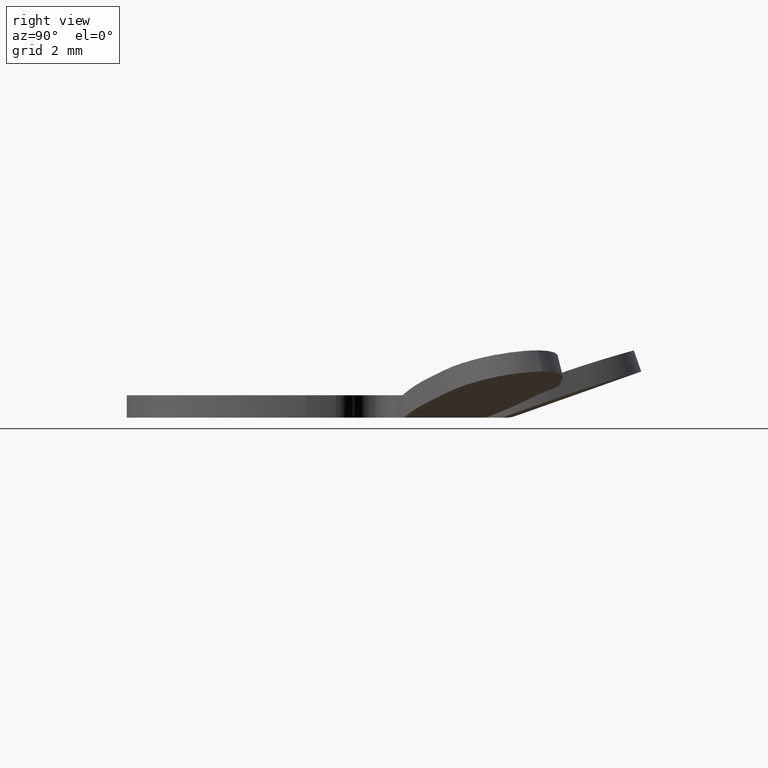
[diagram: clean part render]
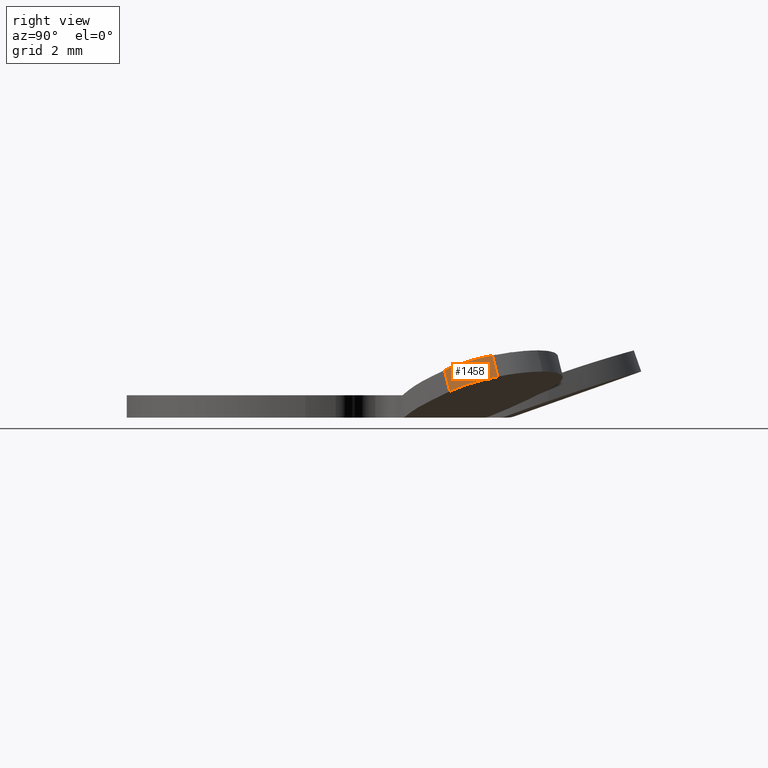
[diagram: same view with one face highlighted and labeled with its STEP entity id]
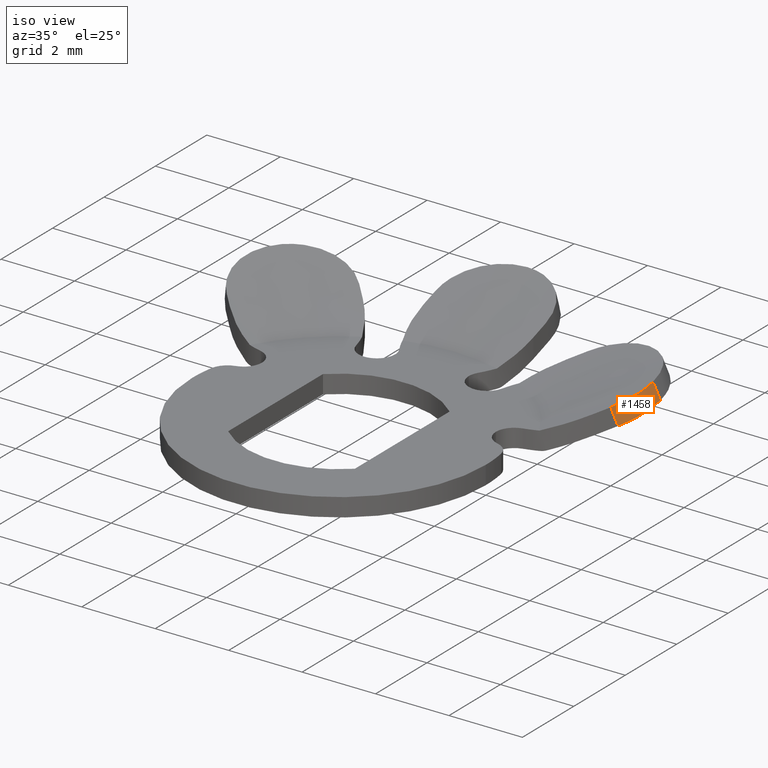
[diagram: same view with one face highlighted and labeled with its STEP entity id]
A machine part, right view. The second image highlights one B-rep face of the part: STEP entity #1458.
A second angle (iso view) of the same face is appended — the face is thin or edge-on in the first view.
In plain terms, the highlighted cylindrical surface (partial cylindrical patch) has radius 1.5 mm, axis along (-0.2357, -0.2357, 0.9428).
Its self-contained STEP definition (entity closure, byte-faithful):
#43 = CARTESIAN_POINT ( 'NONE',  ( 5.483590628253358200, 3.362270284693671400, 0.6527851435058935600 ) ) ;
#53 = VERTEX_POINT ( 'NONE', #1298 ) ;
#79 = EDGE_LOOP ( 'NONE', ( #1463, #966, #1723, #1173 ) ) ;
#152 = DIRECTION ( 'NONE',  ( -0.2357022603955168100, -0.2357022603955144000, 0.9428090415820633600 ) ) ;
#203 = CARTESIAN_POINT ( 'NONE',  ( 5.296689818293988800, 3.175369474734303300, 1.092393531215509100 ) ) ;
#286 = CARTESIAN_POINT ( 'NONE',  ( 5.749218782144581900, 4.294005031925978600, 0.9157053712087435100 ) ) ;
#330 = DIRECTION ( 'NONE',  ( 0.9701425001453314300, 0.0000000000000000000, 0.2425356250363348800 ) ) ;
#483 = CARTESIAN_POINT ( 'NONE',  ( 5.461690359960687000, 3.413182843307039700, 1.186017967799651400 ) ) ;
#610 = VECTOR ( 'NONE', #1668, 1000.000000000000100 ) ;
#611 = CARTESIAN_POINT ( 'NONE',  ( 5.575404564336802900, 3.685099742276374300, 1.271786683140024200 ) ) ;
#651 = AXIS2_PLACEMENT_3D ( 'NONE', #1119, #1406, #330 ) ;
#656 = LINE ( 'NONE', #871, #610 ) ;
#713 = CARTESIAN_POINT ( 'NONE',  ( 5.718825601358008500, 3.899683925508650200, 0.8258045417529468200 ) ) ;
#738 = CYLINDRICAL_SURFACE ( 'NONE', #651, 1.500000000000000200 ) ;
#748 = CARTESIAN_POINT ( 'NONE',  ( 5.630873106498723900, 3.975719565322630700, 1.345911199545375200 ) ) ;
#785 = VECTOR ( 'NONE', #152, 1000.000000000000100 ) ;
#796 = B_SPLINE_CURVE_WITH_KNOTS ( 'NONE', 3,
 ( #1143, #203, #1274, #483, #1411, #611, #1547, #748, #1674, #878 ),
 .UNSPECIFIED., .F., .F.,
 ( 4, 2, 2, 2, 4 ),
 ( 0.0000000000000000000, 0.0003042131761954048500, 0.0006084263523908096900, 0.0009126395285862145400, 0.001216852704781619400 ),
 .UNSPECIFIED. ) ;
#842 = CARTESIAN_POINT ( 'NONE',  ( 5.590505700130660400, 3.529762800402348700, 0.7158734156958351800 ) ) ;
#871 = CARTESIAN_POINT ( 'NONE',  ( 1.455213750217997600, -1.533293416683381800E-016, 18.09172549891237100 ) ) ;
#878 = CARTESIAN_POINT ( 'NONE',  ( 5.631228954200704400, 4.176015203982663200, 1.387664682981616400 ) ) ;
#900 = CARTESIAN_POINT ( 'NONE',  ( 5.227878011468318300, 3.106557667908633700, 1.059050702603928600 ) ) ;
#966 = ORIENTED_EDGE ( 'NONE', *, *, #1466, .T. ) ;
#967 = CARTESIAN_POINT ( 'NONE',  ( 5.754140527042244100, 4.194362117486194900, 0.8960183916155182200 ) ) ;
#976 = VERTEX_POINT ( 'NONE', #1081 ) ;
#979 = CARTESIAN_POINT ( 'NONE',  ( 5.346124389779530100, 3.224804046219843300, 0.5860651893590921300 ) ) ;
#1081 = CARTESIAN_POINT ( 'NONE',  ( 5.631228954200704400, 4.176015203982663200, 1.387664682981616400 ) ) ;
#1115 = CARTESIAN_POINT ( 'NONE',  ( 5.749218782144581900, 4.294005031925978600, 0.9157053712087435100 ) ) ;
#1119 = CARTESIAN_POINT ( 'NONE',  ( 1.533293416683366200E-016, -1.533293416683381800E-016, 17.72792206135786900 ) ) ;
#1134 = LINE ( 'NONE', #1617, #785 ) ;
#1142 = VERTEX_POINT ( 'NONE', #286 ) ;
#1143 = CARTESIAN_POINT ( 'NONE',  ( 5.227878011468318300, 3.106557667908633700, 1.059050702603928600 ) ) ;
#1173 = ORIENTED_EDGE ( 'NONE', *, *, #1328, .F. ) ;
#1274 = CARTESIAN_POINT ( 'NONE',  ( 5.357089378788100700, 3.250574265936249800, 1.124379142441682900 ) ) ;
#1298 = CARTESIAN_POINT ( 'NONE',  ( 5.346124389779530100, 3.224804046219843300, 0.5860651893590921300 ) ) ;
#1321 = FACE_OUTER_BOUND ( 'NONE', #79, .T. ) ;
#1328 = EDGE_CURVE ( 'NONE', #53, #1585, #1134, .T. ) ;
#1406 = DIRECTION ( 'NONE',  ( -0.2357022603955168400, -0.2357022603955144200, 0.9428090415820634700 ) ) ;
#1411 = CARTESIAN_POINT ( 'NONE',  ( 5.506230626409482000, 3.501708429140663700, 1.215987214141327700 ) ) ;
#1420 = B_SPLINE_CURVE_WITH_KNOTS ( 'NONE', 3,
 ( #1115, #967, #1511, #713, #1638, #842, #43, #979 ),
 .UNSPECIFIED., .F., .F.,
 ( 4, 2, 2, 4 ),
 ( 0.001128454630245101900, 0.001432379775149729200, 0.001736304920054356800, 0.002344155209863610500 ),
 .UNSPECIFIED. ) ;
#1438 = EDGE_CURVE ( 'NONE', #1142, #53, #1420, .T. ) ;
#1458 = ADVANCED_FACE ( 'NONE', ( #1321 ), #738, .T. ) ;
#1463 = ORIENTED_EDGE ( 'NONE', *, *, #1438, .F. ) ;
#1466 = EDGE_CURVE ( 'NONE', #1142, #976, #656, .T. ) ;
#1472 = EDGE_CURVE ( 'NONE', #1585, #976, #796, .T. ) ;
#1511 = CARTESIAN_POINT ( 'NONE',  ( 5.749065808626631300, 4.095551408067025000, 0.8741795979588515800 ) ) ;
#1547 = CARTESIAN_POINT ( 'NONE',  ( 5.600358102363291100, 3.779915848330960900, 1.297696787262245600 ) ) ;
#1585 = VERTEX_POINT ( 'NONE', #900 ) ;
#1617 = CARTESIAN_POINT ( 'NONE',  ( 5.230450620094477400, 3.109130276534792800, 1.048760268099292000 ) ) ;
#1638 = CARTESIAN_POINT ( 'NONE',  ( 5.693496280257723400, 3.803283105251162000, 0.7993605202684596100 ) ) ;
#1668 = DIRECTION ( 'NONE',  ( -0.2357022603955168100, -0.2357022603955144000, 0.9428090415820633600 ) ) ;
#1674 = CARTESIAN_POINT ( 'NONE',  ( 5.636116508256115800, 4.076592947151676000, 1.368114466759983400 ) ) ;
#1723 = ORIENTED_EDGE ( 'NONE', *, *, #1472, .F. ) ;